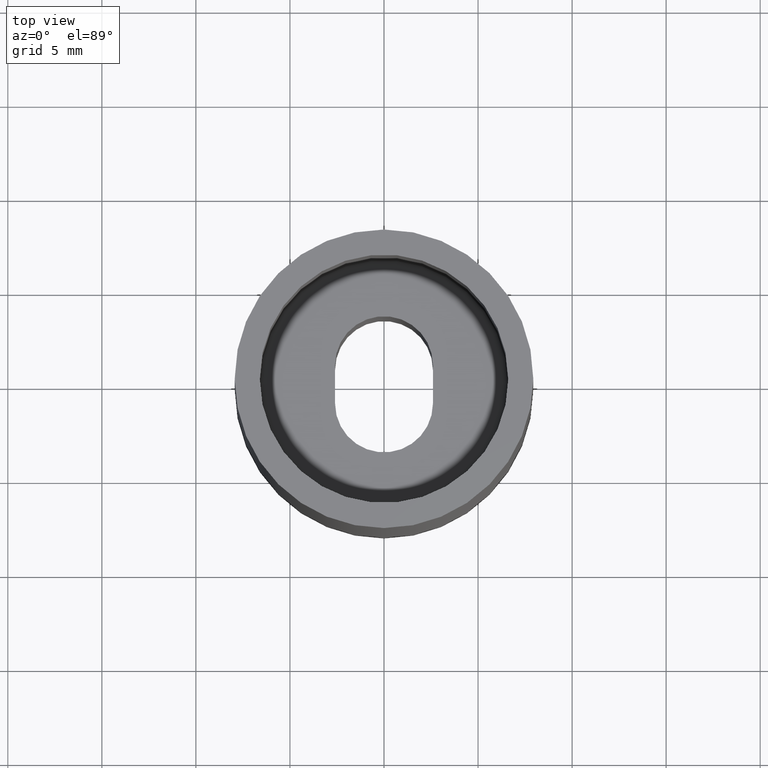
[diagram: clean part render]
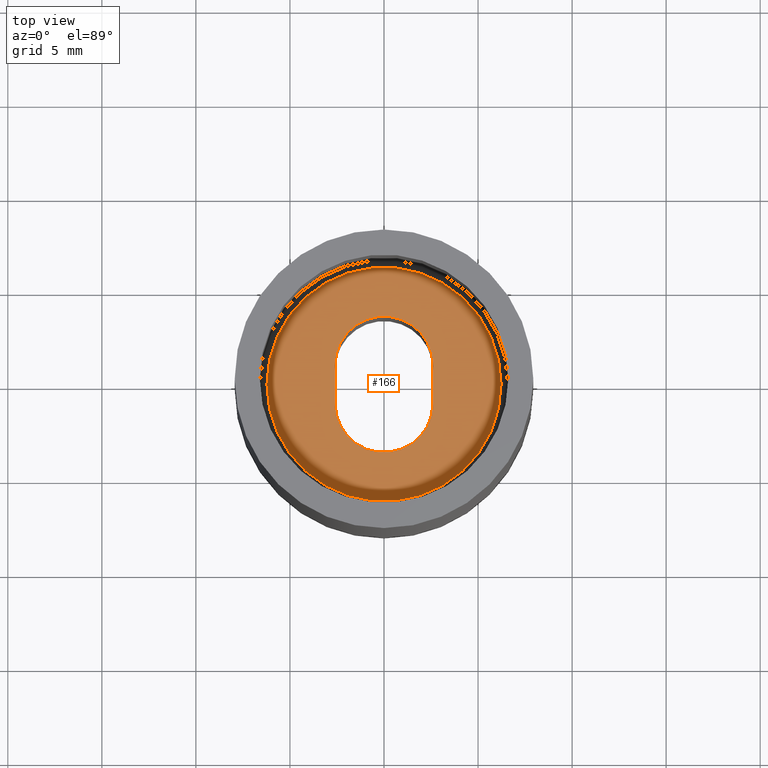
[diagram: same view with one face highlighted and labeled with its STEP entity id]
A machine part, top view. The second image highlights one B-rep face of the part: STEP entity #166.
In plain terms, the highlighted planar face has unit normal (-0, 0, 1).
Its self-contained STEP definition (entity closure, byte-faithful):
#6 = ORIENTED_EDGE ( 'NONE', *, *, #164, .F. ) ;
#15 = CARTESIAN_POINT ( 'NONE',  ( 0.1025000000000000200, -0.03999999999999998000, -0.6600000000000000300 ) ) ;
#25 = VERTEX_POINT ( 'NONE', #159 ) ;
#36 = CARTESIAN_POINT ( 'NONE',  ( -0.2450000000000000000, 3.092233167847066800E-017, -0.6600000000000000300 ) ) ;
#65 = FACE_OUTER_BOUND ( 'NONE', #235, .T. ) ;
#84 = CARTESIAN_POINT ( 'NONE',  ( -0.1024999999999999900, 0.03999999999999995200, -0.6600000000000000300 ) ) ;
#97 = AXIS2_PLACEMENT_3D ( 'NONE', #398, #241, #306 ) ;
#104 = VERTEX_POINT ( 'NONE', #177 ) ;
#109 = DIRECTION ( 'NONE',  ( -0.0000000000000000000, 0.0000000000000000000, 1.000000000000000000 ) ) ;
#119 = CIRCLE ( 'NONE', #266, 0.2450000000000000000 ) ;
#120 = ORIENTED_EDGE ( 'NONE', *, *, #175, .F. ) ;
#131 = DIRECTION ( 'NONE',  ( 1.000000000000000000, 0.0000000000000000000, 0.0000000000000000000 ) ) ;
#137 = VERTEX_POINT ( 'NONE', #155 ) ;
#148 = VERTEX_POINT ( 'NONE', #36 ) ;
#155 = CARTESIAN_POINT ( 'NONE',  ( 0.1024999999999999900, 0.04000000000000004900, -0.6600000000000000300 ) ) ;
#159 = CARTESIAN_POINT ( 'NONE',  ( 0.2450000000000000000, 0.0000000000000000000, -0.6600000000000000300 ) ) ;
#160 = LINE ( 'NONE', #218, #349 ) ;
#162 = CIRCLE ( 'NONE', #97, 0.1024999999999999900 ) ;
#164 = EDGE_CURVE ( 'NONE', #104, #365, #162, .T. ) ;
#166 = ADVANCED_FACE ( 'NONE', ( #65, #251 ), #206, .T. ) ;
#175 = EDGE_CURVE ( 'NONE', #137, #309, #304, .T. ) ;
#176 = LINE ( 'NONE', #315, #373 ) ;
#177 = CARTESIAN_POINT ( 'NONE',  ( -0.1024999999999999900, -0.04000000000000001500, -0.6600000000000000300 ) ) ;
#206 = PLANE ( 'NONE',  #249 ) ;
#212 = DIRECTION ( 'NONE',  ( 1.000000000000000000, 0.0000000000000000000, 0.0000000000000000000 ) ) ;
#216 = EDGE_LOOP ( 'NONE', ( #6, #356, #120, #382 ) ) ;
#218 = CARTESIAN_POINT ( 'NONE',  ( 0.1025000000000000200, 2.187612651176460000E-017, -0.6600000000000000300 ) ) ;
#235 = EDGE_LOOP ( 'NONE', ( #383, #285 ) ) ;
#237 = DIRECTION ( 'NONE',  ( -0.0000000000000000000, 0.0000000000000000000, 1.000000000000000000 ) ) ;
#241 = DIRECTION ( 'NONE',  ( -0.0000000000000000000, 0.0000000000000000000, 1.000000000000000000 ) ) ;
#243 = DIRECTION ( 'NONE',  ( 2.134256245050204700E-016, -1.000000000000000000, 0.0000000000000000000 ) ) ;
#246 = AXIS2_PLACEMENT_3D ( 'NONE', #300, #333, #212 ) ;
#249 = AXIS2_PLACEMENT_3D ( 'NONE', #360, #421, #357 ) ;
#250 = CIRCLE ( 'NONE', #246, 0.2450000000000000000 ) ;
#251 = FACE_BOUND ( 'NONE', #216, .T. ) ;
#252 = CARTESIAN_POINT ( 'NONE',  ( -2.143131898507869100E-018, 0.04000000000000000100, -0.6600000000000000300 ) ) ;
#266 = AXIS2_PLACEMENT_3D ( 'NONE', #396, #237, #131 ) ;
#269 = AXIS2_PLACEMENT_3D ( 'NONE', #252, #109, #317 ) ;
#285 = ORIENTED_EDGE ( 'NONE', *, *, #320, .T. ) ;
#300 = CARTESIAN_POINT ( 'NONE',  ( 0.0000000000000000000, 0.0000000000000000000, -0.6600000000000000300 ) ) ;
#302 = EDGE_CURVE ( 'NONE', #309, #104, #176, .T. ) ;
#304 = CIRCLE ( 'NONE', #269, 0.1024999999999999900 ) ;
#306 = DIRECTION ( 'NONE',  ( 1.000000000000000000, 0.0000000000000000000, 0.0000000000000000000 ) ) ;
#309 = VERTEX_POINT ( 'NONE', #84 ) ;
#312 = DIRECTION ( 'NONE',  ( 2.134256245050206200E-016, -1.000000000000000000, 0.0000000000000000000 ) ) ;
#315 = CARTESIAN_POINT ( 'NONE',  ( -0.1024999999999999900, -2.187612651176461300E-017, -0.6600000000000000300 ) ) ;
#317 = DIRECTION ( 'NONE',  ( 1.000000000000000000, 0.0000000000000000000, 0.0000000000000000000 ) ) ;
#320 = EDGE_CURVE ( 'NONE', #148, #25, #250, .T. ) ;
#333 = DIRECTION ( 'NONE',  ( -0.0000000000000000000, 0.0000000000000000000, 1.000000000000000000 ) ) ;
#342 = EDGE_CURVE ( 'NONE', #137, #365, #160, .T. ) ;
#349 = VECTOR ( 'NONE', #243, 39.37007874015748100 ) ;
#356 = ORIENTED_EDGE ( 'NONE', *, *, #302, .F. ) ;
#357 = DIRECTION ( 'NONE',  ( 1.000000000000000000, 0.0000000000000000000, 0.0000000000000000000 ) ) ;
#360 = CARTESIAN_POINT ( 'NONE',  ( 0.0000000000000000000, 0.0000000000000000000, -0.6600000000000000300 ) ) ;
#365 = VERTEX_POINT ( 'NONE', #15 ) ;
#373 = VECTOR ( 'NONE', #312, 39.37007874015748100 ) ;
#382 = ORIENTED_EDGE ( 'NONE', *, *, #342, .T. ) ;
#383 = ORIENTED_EDGE ( 'NONE', *, *, #403, .T. ) ;
#396 = CARTESIAN_POINT ( 'NONE',  ( 0.0000000000000000000, 0.0000000000000000000, -0.6600000000000000300 ) ) ;
#398 = CARTESIAN_POINT ( 'NONE',  ( 2.234980408443919300E-017, -0.04000000000000000100, -0.6600000000000000300 ) ) ;
#403 = EDGE_CURVE ( 'NONE', #25, #148, #119, .T. ) ;
#421 = DIRECTION ( 'NONE',  ( -0.0000000000000000000, 0.0000000000000000000, 1.000000000000000000 ) ) ;